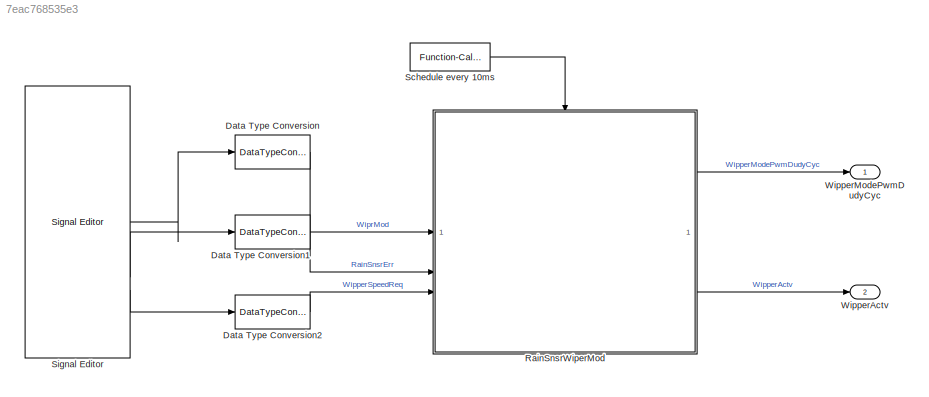
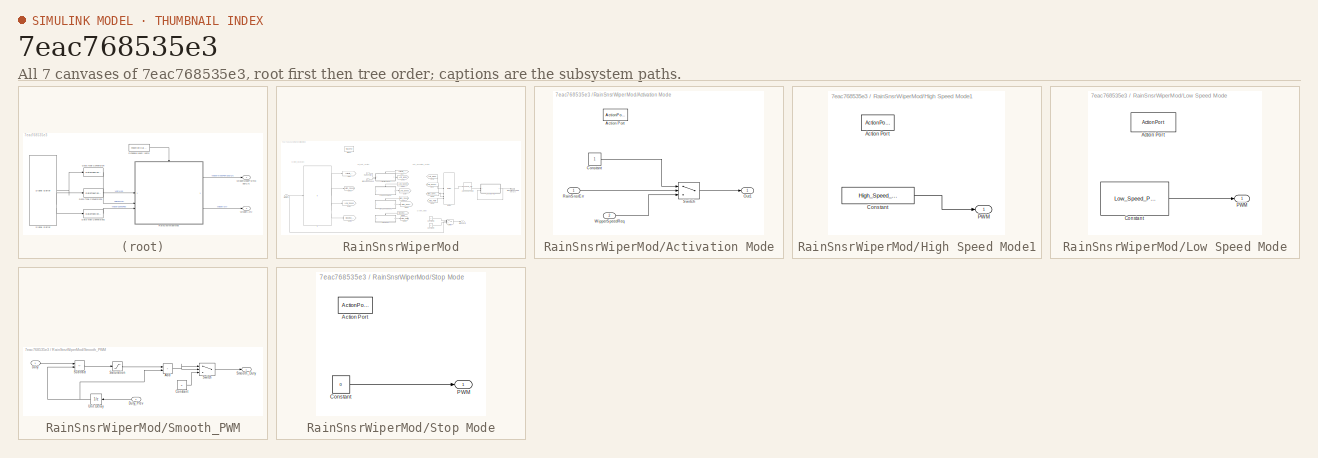
[diagram: thumbnail index - all 7 canvases of the model, root first then tree order]
MODEL slx_7eac768535e3
KIND model
CONFIG AbsTol = auto
CONFIG EnableMultiTasking = off
CONFIG FixedStep = 0.01
CONFIG MaxStep = auto
CONFIG MinStep = auto
CONFIG RelTol = 1e-3
CONFIG SampleTimeConstraint = Unconstrained
CONFIG SolverName = FixedStepDiscrete
CONFIG StartTime = 0.0
CONFIG StopTime = 20
WORKSPACE source: mxarray member
WORKSPACE High_Speed_PWM_Index = 7
WORKSPACE Low_Speed_PWM_Index = 0
WORKSPACE PWM = [0 0.4 0.45 0.5 0.55 0.6 0.65 0.7]
BLOCK [DataTypeConversion] Data Type Conversion
  OutDataTypeStr = uint8
  RndMeth = Floor
  SaturateOnIntegerOverflow = off
BLOCK [DataTypeConversion] Data Type Conversion1
  OutDataTypeStr = boolean
  RndMeth = Floor
  SaturateOnIntegerOverflow = off
BLOCK [DataTypeConversion] Data Type Conversion2
  OutDataTypeStr = double
  RndMeth = Floor
  SaturateOnIntegerOverflow = off
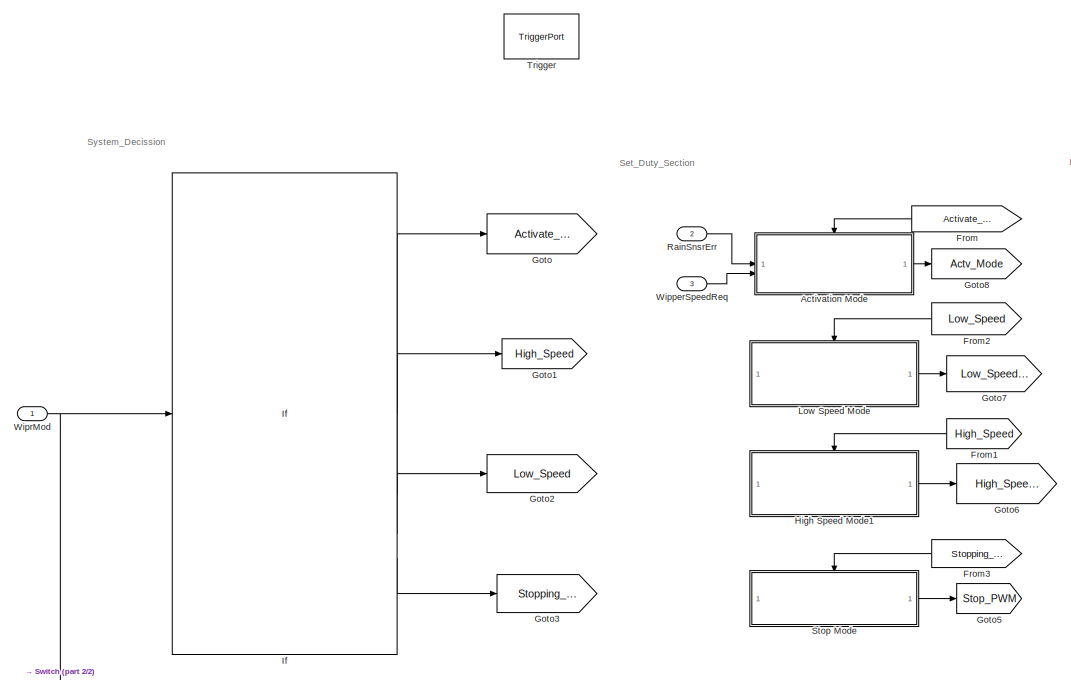
[diagram: RainSnsrWiperMod - part 1/2, left side, full height]
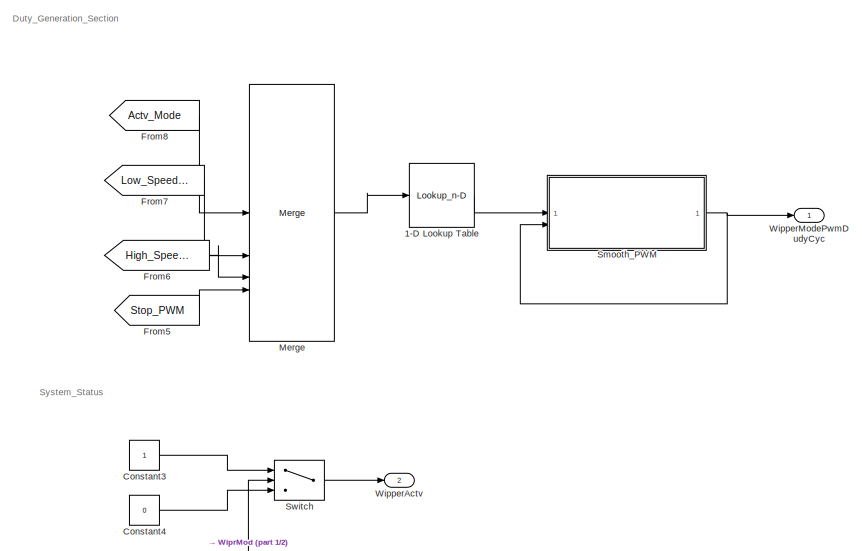
[diagram: RainSnsrWiperMod - part 2/2, middle right region]
BLOCK [SubSystem] RainSnsrWiperMod
  ShowPortLabels = FromPortBlockName
BLOCK [Lookup_n-D] RainSnsrWiperMod/1-D Lookup Table
  BreakpointsForDimension1 = [0:7]
  InputPortMap = u0
  InternalRulePriority = Speed
  NumberOfTableDimensions = 1
  RndMeth = Simplest
  Table = PWM
BLOCK [SubSystem] RainSnsrWiperMod/Activation Mode
  TreatAsAtomicUnit = on
BLOCK [ActionPort] RainSnsrWiperMod/Activation Mode/Action Port
  ActionPortLabel = if(u1 == 1)
BLOCK [Constant] RainSnsrWiperMod/Activation Mode/Constant
BLOCK [Outport] RainSnsrWiperMod/Activation Mode/Out1
BLOCK [Inport] RainSnsrWiperMod/Activation Mode/RainSnsrErr
BLOCK [Switch] RainSnsrWiperMod/Activation Mode/Switch
  Criteria = u2 > Threshold
  InputSameDT = off
  SaturateOnIntegerOverflow = off
BLOCK [Inport] RainSnsrWiperMod/Activation Mode/WipperSpeedReq
  Port = 2
BLOCK [Constant] RainSnsrWiperMod/Constant3
BLOCK [Constant] RainSnsrWiperMod/Constant4
  Value = 0
BLOCK [From] RainSnsrWiperMod/From
  GotoTag = Activate_Mode
  NameLocation = top
BLOCK [From] RainSnsrWiperMod/From1
  GotoTag = High_Speed
  NameLocation = top
BLOCK [From] RainSnsrWiperMod/From2
  GotoTag = Low_Speed
  NameLocation = top
BLOCK [From] RainSnsrWiperMod/From3
  GotoTag = Stopping_Mode
  NameLocation = top
BLOCK [From] RainSnsrWiperMod/From5
  GotoTag = Stop_PWM
BLOCK [From] RainSnsrWiperMod/From6
  GotoTag = High_Speed_PWM
BLOCK [From] RainSnsrWiperMod/From7
  GotoTag = Low_Speed_PWM
BLOCK [From] RainSnsrWiperMod/From8
  GotoTag = Actv_Mode
BLOCK [Goto] RainSnsrWiperMod/Goto
  GotoTag = Activate_Mode
BLOCK [Goto] RainSnsrWiperMod/Goto1
  GotoTag = High_Speed
BLOCK [Goto] RainSnsrWiperMod/Goto2
  GotoTag = Low_Speed
BLOCK [Goto] RainSnsrWiperMod/Goto3
  GotoTag = Stopping_Mode
BLOCK [Goto] RainSnsrWiperMod/Goto5
  GotoTag = Stop_PWM
BLOCK [Goto] RainSnsrWiperMod/Goto6
  GotoTag = High_Speed_PWM
BLOCK [Goto] RainSnsrWiperMod/Goto7
  GotoTag = Low_Speed_PWM
BLOCK [Goto] RainSnsrWiperMod/Goto8
  GotoTag = Actv_Mode
BLOCK [SubSystem] RainSnsrWiperMod/High Speed Mode1
  TreatAsAtomicUnit = on
BLOCK [ActionPort] RainSnsrWiperMod/High Speed Mode1/Action Port
  ActionPortLabel = elseif(u1 == 2)
BLOCK [Constant] RainSnsrWiperMod/High Speed Mode1/Constant
  Value = High_Speed_PWM_Index
BLOCK [Outport] RainSnsrWiperMod/High Speed Mode1/PWM
BLOCK [If] RainSnsrWiperMod/If
  ElseIfExpressions = u1 == 2,u1 == 3
  IfExpression = u1 == 1
BLOCK [SubSystem] RainSnsrWiperMod/Low Speed Mode
  TreatAsAtomicUnit = on
BLOCK [ActionPort] RainSnsrWiperMod/Low Speed Mode/Action Port
  ActionPortLabel = elseif(u1 == 3)
BLOCK [Constant] RainSnsrWiperMod/Low Speed Mode/Constant
  Value = Low_Speed_PWM_Index
BLOCK [Outport] RainSnsrWiperMod/Low Speed Mode/PWM
BLOCK [Merge] RainSnsrWiperMod/Merge
  Inputs = 4
BLOCK [Inport] RainSnsrWiperMod/RainSnsrErr
  OutDataTypeStr = boolean
  Port = 2
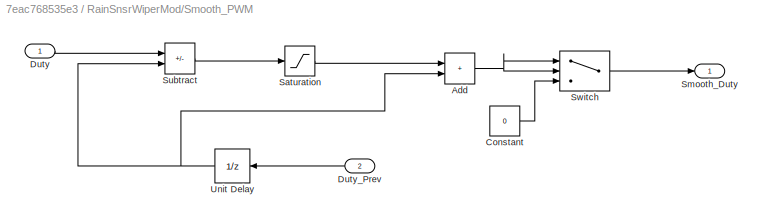
BLOCK [SubSystem] RainSnsrWiperMod/Smooth_PWM
BLOCK [Sum] RainSnsrWiperMod/Smooth_PWM/Add
  IconShape = rectangular
BLOCK [Constant] RainSnsrWiperMod/Smooth_PWM/Constant
  Value = 0
BLOCK [Inport] RainSnsrWiperMod/Smooth_PWM/Duty
BLOCK [Inport] RainSnsrWiperMod/Smooth_PWM/Duty_Prev
  NameLocation = top
  Port = 2
BLOCK [Saturate] RainSnsrWiperMod/Smooth_PWM/Saturation
  LowerLimit = -0.005
  UpperLimit = 0.005
BLOCK [Outport] RainSnsrWiperMod/Smooth_PWM/Smooth_Duty
BLOCK [Sum] RainSnsrWiperMod/Smooth_PWM/Subtract
  IconShape = rectangular
  Inputs = +-
BLOCK [Switch] RainSnsrWiperMod/Smooth_PWM/Switch
  Criteria = u2 > Threshold
  InputSameDT = off
  SaturateOnIntegerOverflow = off
BLOCK [UnitDelay] RainSnsrWiperMod/Smooth_PWM/Unit Delay
  HasFrameUpgradeWarning = on
  NameLocation = top
  SampleTime = -1
BLOCK [SubSystem] RainSnsrWiperMod/Stop Mode
  TreatAsAtomicUnit = on
BLOCK [ActionPort] RainSnsrWiperMod/Stop Mode/Action Port
  ActionPortLabel = else
BLOCK [Constant] RainSnsrWiperMod/Stop Mode/Constant
  Value = 0
BLOCK [Outport] RainSnsrWiperMod/Stop Mode/PWM
BLOCK [Switch] RainSnsrWiperMod/Switch
  Criteria = u2 ~= 0
  InputSameDT = off
  SaturateOnIntegerOverflow = off
BLOCK [TriggerPort] RainSnsrWiperMod/Trigger
  PortDimensions = 1
  StatesWhenEnabling = held
  TriggerType = function-call
  VariantControl = (inherit)
BLOCK [Outport] RainSnsrWiperMod/WipperActv
  Port = 2
BLOCK [Outport] RainSnsrWiperMod/WipperModePwmDudyCyc
BLOCK [Inport] RainSnsrWiperMod/WipperSpeedReq
  Port = 3
BLOCK [Inport] RainSnsrWiperMod/WiprMod
BLOCK [Reference] Schedule every 10ms  REF=simulink/Ports &
Subsystems/Function-Call
Generator
  SourceBlock = simulink/Ports &\nSubsystems/Function-Call\nGenerator
  SourceType = Function-Call Generator
BLOCK [Reference] Signal Editor  REF=SignalEditorBlockLib/Signal Editor
  LibrarySourceBlock = simulink/Sources/Signal Editor
  SourceBlock = SignalEditorBlockLib/Signal Editor
  SourceType = SignalEditor
  UserDataPersistent = on
BLOCK [Outport] WipperActv
  NameLocation = right
  Port = 2
BLOCK [Outport] WipperModePwmDudyCyc
  NameLocation = right
ANNOTATION RainSnsrWiperMod: Duty_Generation_Section
ANNOTATION RainSnsrWiperMod: Set_Duty_Section
ANNOTATION RainSnsrWiperMod: System_Decission
ANNOTATION RainSnsrWiperMod: System_Status
LINE Data Type Conversion1:1 -> RainSnsrWiperMod:2
LINE Data Type Conversion2:1 -> RainSnsrWiperMod:3
LINE Data Type Conversion:1 -> RainSnsrWiperMod:1
LINE RainSnsrWiperMod/1-D Lookup Table:1 -> RainSnsrWiperMod/Smooth_PWM:1
LINE RainSnsrWiperMod/Activation Mode/Constant:1 -> RainSnsrWiperMod/Activation Mode/Switch:1
LINE RainSnsrWiperMod/Activation Mode/RainSnsrErr:1 -> RainSnsrWiperMod/Activation Mode/Switch:2
LINE RainSnsrWiperMod/Activation Mode/Switch:1 -> RainSnsrWiperMod/Activation Mode/Out1:1
LINE RainSnsrWiperMod/Activation Mode/WipperSpeedReq:1 -> RainSnsrWiperMod/Activation Mode/Switch:3
LINE RainSnsrWiperMod/Activation Mode:1 -> RainSnsrWiperMod/Goto8:1
LINE RainSnsrWiperMod/Constant3:1 -> RainSnsrWiperMod/Switch:1
LINE RainSnsrWiperMod/Constant4:1 -> RainSnsrWiperMod/Switch:3
LINE RainSnsrWiperMod/From1:1 -> RainSnsrWiperMod/High Speed Mode1:ifaction
LINE RainSnsrWiperMod/From2:1 -> RainSnsrWiperMod/Low Speed Mode:ifaction
LINE RainSnsrWiperMod/From3:1 -> RainSnsrWiperMod/Stop Mode:ifaction
LINE RainSnsrWiperMod/From5:1 -> RainSnsrWiperMod/Merge:4
LINE RainSnsrWiperMod/From6:1 -> RainSnsrWiperMod/Merge:3
LINE RainSnsrWiperMod/From7:1 -> RainSnsrWiperMod/Merge:2
LINE RainSnsrWiperMod/From8:1 -> RainSnsrWiperMod/Merge:1
LINE RainSnsrWiperMod/From:1 -> RainSnsrWiperMod/Activation Mode:ifaction
LINE RainSnsrWiperMod/High Speed Mode1/Constant:1 -> RainSnsrWiperMod/High Speed Mode1/PWM:1
LINE RainSnsrWiperMod/High Speed Mode1:1 -> RainSnsrWiperMod/Goto6:1
LINE RainSnsrWiperMod/If:1 -> RainSnsrWiperMod/Goto:1
LINE RainSnsrWiperMod/If:2 -> RainSnsrWiperMod/Goto1:1
LINE RainSnsrWiperMod/If:3 -> RainSnsrWiperMod/Goto2:1
LINE RainSnsrWiperMod/If:4 -> RainSnsrWiperMod/Goto3:1
LINE RainSnsrWiperMod/Low Speed Mode/Constant:1 -> RainSnsrWiperMod/Low Speed Mode/PWM:1
LINE RainSnsrWiperMod/Low Speed Mode:1 -> RainSnsrWiperMod/Goto7:1
LINE RainSnsrWiperMod/Merge:1 -> RainSnsrWiperMod/1-D Lookup Table:1
LINE RainSnsrWiperMod/RainSnsrErr:1 -> RainSnsrWiperMod/Activation Mode:1
NET RainSnsrWiperMod/Smooth_PWM/Add:1 -> RainSnsrWiperMod/Smooth_PWM/Switch:1, RainSnsrWiperMod/Smooth_PWM/Switch:2
LINE RainSnsrWiperMod/Smooth_PWM/Constant:1 -> RainSnsrWiperMod/Smooth_PWM/Switch:3
LINE RainSnsrWiperMod/Smooth_PWM/Duty:1 -> RainSnsrWiperMod/Smooth_PWM/Subtract:1
LINE RainSnsrWiperMod/Smooth_PWM/Duty_Prev:1 -> RainSnsrWiperMod/Smooth_PWM/Unit Delay:1
LINE RainSnsrWiperMod/Smooth_PWM/Saturation:1 -> RainSnsrWiperMod/Smooth_PWM/Add:1
LINE RainSnsrWiperMod/Smooth_PWM/Subtract:1 -> RainSnsrWiperMod/Smooth_PWM/Saturation:1
LINE RainSnsrWiperMod/Smooth_PWM/Switch:1 -> RainSnsrWiperMod/Smooth_PWM/Smooth_Duty:1
NET RainSnsrWiperMod/Smooth_PWM/Unit Delay:1 -> RainSnsrWiperMod/Smooth_PWM/Add:2, RainSnsrWiperMod/Smooth_PWM/Subtract:2
NET RainSnsrWiperMod/Smooth_PWM:1 -> RainSnsrWiperMod/Smooth_PWM:2, RainSnsrWiperMod/WipperModePwmDudyCyc:1
LINE RainSnsrWiperMod/Stop Mode/Constant:1 -> RainSnsrWiperMod/Stop Mode/PWM:1
LINE RainSnsrWiperMod/Stop Mode:1 -> RainSnsrWiperMod/Goto5:1
LINE RainSnsrWiperMod/Switch:1 -> RainSnsrWiperMod/WipperActv:1
LINE RainSnsrWiperMod/WipperSpeedReq:1 -> RainSnsrWiperMod/Activation Mode:2
NET RainSnsrWiperMod/WiprMod:1 -> RainSnsrWiperMod/If:1, RainSnsrWiperMod/Switch:2
LINE RainSnsrWiperMod:1 -> WipperModePwmDudyCyc:1
LINE RainSnsrWiperMod:2 -> WipperActv:1
LINE Schedule every 10ms:1 -> RainSnsrWiperMod:trigger
LINE Signal Editor:1 -> Data Type Conversion:1
LINE Signal Editor:2 -> Data Type Conversion1:1
LINE Signal Editor:3 -> Data Type Conversion2:1
note: NET lines group one-source signal fan-out (src -> all destinations, sorted); 1:1 wires keep LINE
